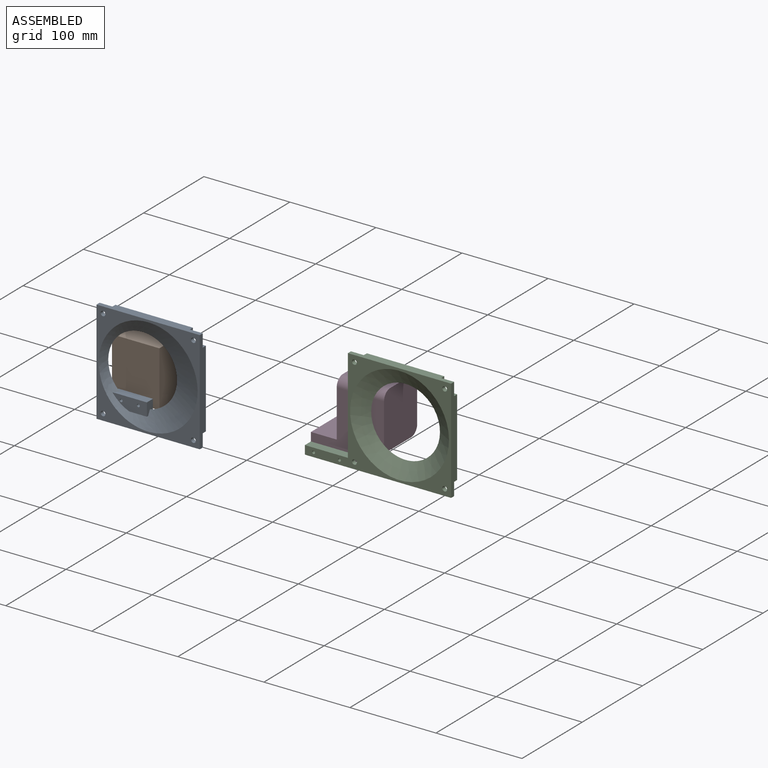
[diagram: assembled view]
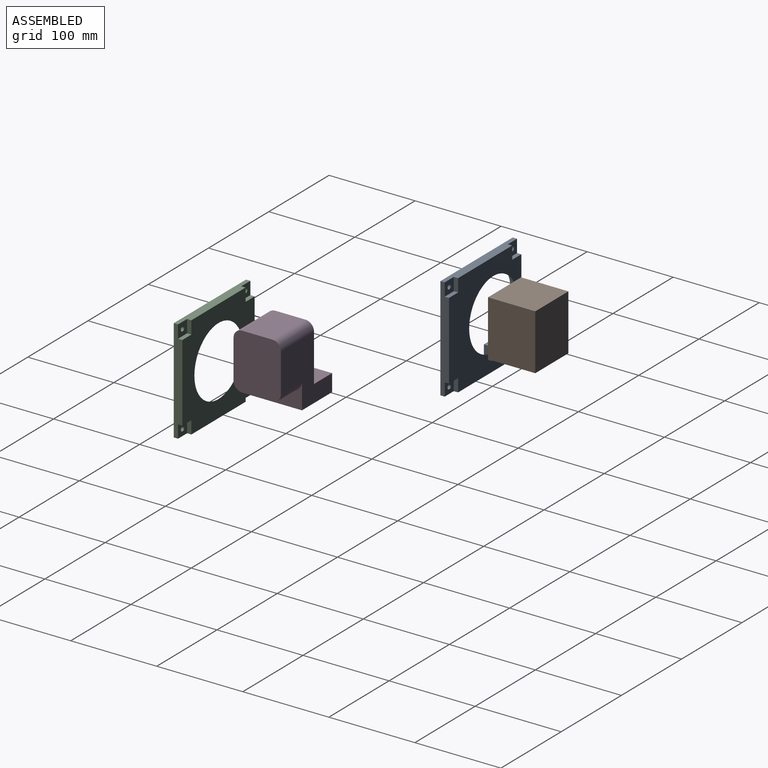
[diagram: assembled view, second angle]
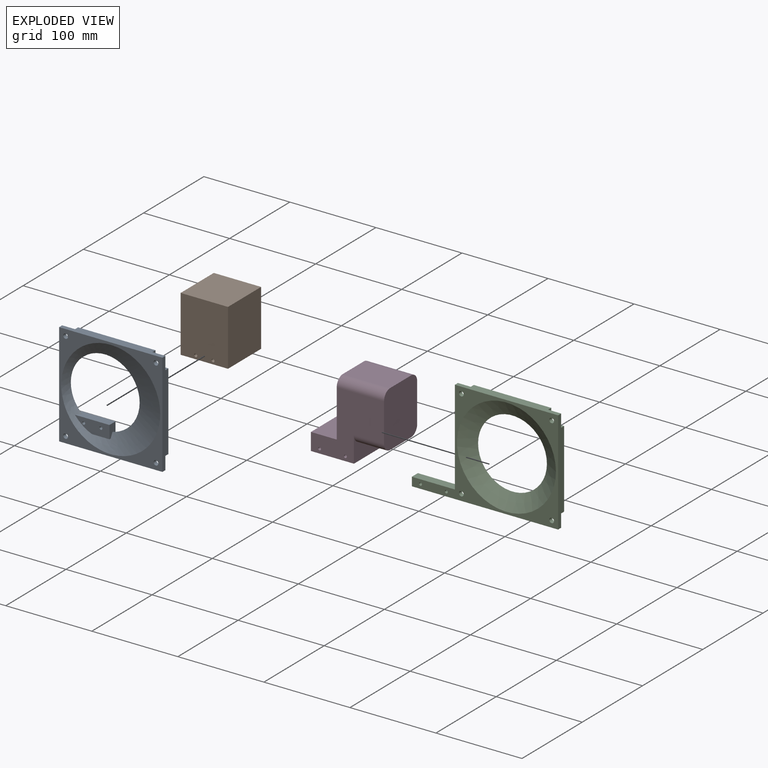
[diagram: exploded view]
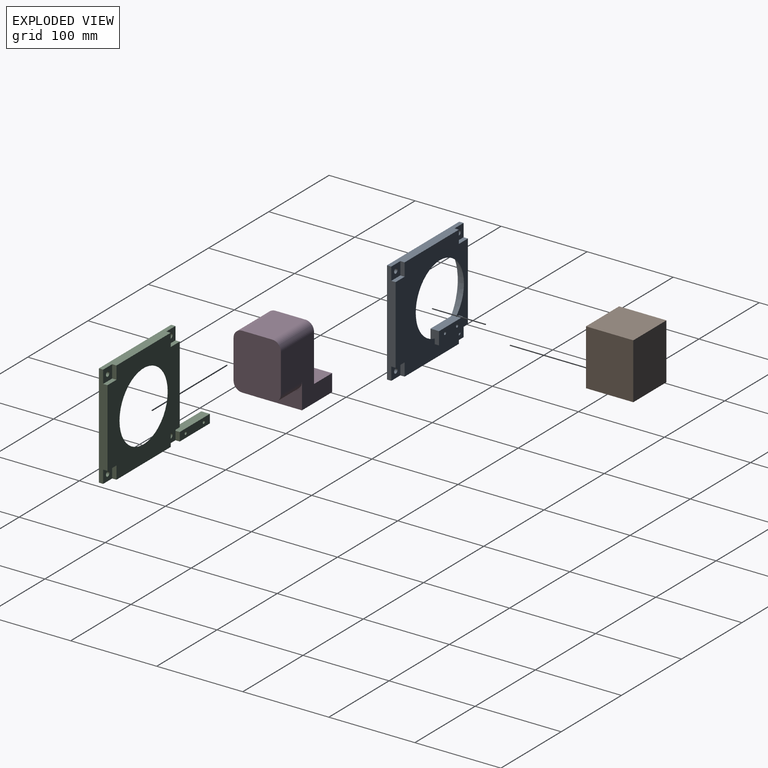
[diagram: exploded view, second angle]
ASSEMBLY  parts=4 mates=2
PART A: 33 faces, bbox 120.1x120.1x15.1 mm
  f0: plane 120x120mm, normal (0,0,-1), area 8136.6mm2, adj f1,f2,f3,f8,f9,f11,f12,f14
  f1: bspline ~115x115mm, area 6104.9mm2, adj f0,f10,f24,f25,f26,f28,f29
  f2: plane 120x10mm, normal (0,-1,0), area 1050mm2, adj f0,f3,f8,f10,f15,f16,f18,f19
  f3: plane 120x10mm, normal (-1,0,0), area 1050mm2, adj f0,f2,f9,f10,f17,f19,f21,f22
  f4: cylinder r=2.75mm len=5.5mm, axis (0,0,-1), area 86.4mm2, adj f10,f22
  f5: cylinder r=2.75mm len=5.5mm, axis (0,0,-1), area 86.4mm2, adj f10,f19
  f6: cylinder r=2.75mm len=5.5mm, axis (0,0,-1), area 86.4mm2, adj f10,f16
  f7: cylinder r=2.75mm len=5.5mm, axis (0,0,-1), area 86.4mm2, adj f10,f13
  f8: plane 120x10mm, normal (1,0,0), area 1050mm2, adj f0,f2,f9,f10,f11,f13,f14,f16
  f9: plane 120x10mm, normal (0,1,0), area 1050mm2, adj f0,f3,f8,f10,f12,f13,f20,f22
  f10: plane 120x120mm, normal (0,0,1), area 3918.8mm2, adj f1,f2,f3,f4,f5,f6,f7,f8
  f11: plane 15x5mm, normal (0,1,0), area 75mm2, adj f0,f8,f12,f13
  f12: plane 15x5mm, normal (1,0,0), area 75mm2, adj f0,f9,f11,f13
  f13: plane 15x15mm, normal (0,0,-1), area 201.2mm2, adj f7,f8,f9,f11,f12
  f14: plane 15x5mm, normal (0,-1,0), area 75mm2, adj f0,f8,f15,f16
  f15: plane 15x5mm, normal (1,0,0), area 75mm2, adj f0,f2,f14,f16
  f16: plane 15x15mm, normal (0,0,-1), area 201.2mm2, adj f2,f6,f8,f14,f15
  f17: plane 15x5mm, normal (0,-1,0), area 75mm2, adj f0,f3,f18,f19
  f18: plane 15x5mm, normal (-1,0,0), area 75mm2, adj f0,f2,f17,f19
  f19: plane 15x15mm, normal (0,0,-1), area 201.2mm2, adj f2,f3,f5,f17,f18
  f20: plane 15x5mm, normal (-1,0,0), area 75mm2, adj f0,f9,f21,f22
  f21: plane 15x5mm, normal (0,1,0), area 75mm2, adj f0,f3,f20,f22
  f22: plane 15x15mm, normal (0,0,-1), area 201.2mm2, adj f3,f4,f9,f20,f21
  f23: plane 15x5mm, normal (-1,0,0), area 75mm2, adj f0,f25,f27,f30
  f24: plane 0.18x0.16mm, normal (-1,0,0), area 0mm2, adj f1,f25,f29
  f25: plane 40x10mm, normal (0,1,0), area 388.4mm2, adj f0,f1,f23,f24,f26,f29,f30
  f26: plane 15x10mm, normal (1,0,0), area 141.3mm2, adj f0,f1,f25,f27,f28,f29,f30
  f27: plane 40x5mm, normal (0,-1,0), area 200mm2, adj f0,f23,f26,f30
  f28: plane 20.47x2.15mm, normal (0,-1,0), area 33.1mm2, adj f1,f26,f29
  f29: plane 40.1x15.1mm, normal (0,0,1), area 462.8mm2, adj f1,f24,f25,f26,f28,f31,f32
  f30: plane 40x15mm, normal (0,0,-1), area 581.8mm2, adj f23,f25,f26,f27,f31,f32
  f31: cylinder r=1.7mm len=10mm, axis (0,0,-1), area 106.8mm2, adj f29,f30
  f32: cylinder r=1.7mm len=10mm, axis (0,0,1), area 106.8mm2, adj f29,f30
PART B: 10 faces, bbox 55x55x65 mm
  f0: plane 65x55mm, normal (0,-1,0), area 3555.8mm2, adj f1,f3,f4,f5,f6,f8
  f1: plane 65x55mm, normal (1,0,0), area 3575mm2, adj f0,f2,f4,f5
  f2: plane 65x55mm, normal (0,1,0), area 3575mm2, adj f1,f3,f4,f5
  f3: plane 65x55mm, normal (-1,0,0), area 3575mm2, adj f0,f2,f4,f5
  f4: plane 55x55mm, normal (0,0,1), area 3025mm2, adj f0,f1,f2,f3
  f5: plane 55x55mm, normal (0,0,-1), area 3025mm2, adj f0,f1,f2,f3
  f6: cylinder r=1.75mm len=10mm, axis (0,-1,0), area 110mm2, adj f0,f7
  f7: plane 3.5x3.5mm, normal (0,-1,0), area 9.6mm2, adj f6
  f8: cylinder r=1.75mm len=10mm, axis (0,-1,0), area 110mm2, adj f0,f9
  f9: plane 3.5x3.5mm, normal (0,-1,0), area 9.6mm2, adj f8
PART C: 29 faces, bbox 170x120x10 mm
  f0: plane 110x10mm, normal (-1,0,0), area 1000mm2, adj f6,f8,f9,f17,f19,f21,f22,f24
  f1: plane 170x10mm, normal (0,-1,0), area 1550mm2, adj f6,f7,f9,f15,f16,f18,f19,f23
  f2: cylinder r=2.75mm len=5.5mm, axis (0,0,-1), area 86.4mm2, adj f9,f22
  f3: cylinder r=2.75mm len=5.5mm, axis (0,0,-1), area 86.4mm2, adj f9,f19
  f4: cylinder r=2.75mm len=5.5mm, axis (0,0,-1), area 86.4mm2, adj f9,f16
  f5: cylinder r=2.75mm len=5.5mm, axis (0,0,-1), area 86.4mm2, adj f9,f13
  f6: plane 120x120mm, normal (0,0,-1), area 8473.5mm2, adj f0,f1,f7,f8,f10,f11,f12,f14
  f7: plane 120x10mm, normal (1,0,0), area 1050mm2, adj f1,f6,f8,f9,f11,f13,f14,f16
  f8: plane 120x10mm, normal (0,1,0), area 1050mm2, adj f0,f6,f7,f9,f12,f13,f20,f22
  f9: plane 170x120mm, normal (0,0,1), area 4399.9mm2, adj f0,f1,f2,f3,f4,f5,f7,f8
  f10: cone r=57.5mm half-angle=60.3deg, axis (0,0,1), area 6173.8mm2, adj f6,f9
  f11: plane 15x5mm, normal (0,1,0), area 75mm2, adj f6,f7,f12,f13
  f12: plane 15x5mm, normal (1,0,0), area 75mm2, adj f6,f8,f11,f13
  f13: plane 15x15mm, normal (0,0,-1), area 201.2mm2, adj f5,f7,f8,f11,f12
  f14: plane 15x5mm, normal (0,-1,0), area 75mm2, adj f6,f7,f15,f16
  f15: plane 15x5mm, normal (1,0,0), area 75mm2, adj f1,f6,f14,f16
  f16: plane 15x15mm, normal (0,0,-1), area 201.2mm2, adj f1,f4,f7,f14,f15
  f17: plane 15x5mm, normal (0,-1,0), area 75mm2, adj f0,f6,f18,f19
  f18: plane 15x5mm, normal (-1,0,0), area 75mm2, adj f1,f6,f17,f19
  f19: plane 15x15mm, normal (0,0,-1), area 201.2mm2, adj f0,f1,f3,f17,f18,f23
  f20: plane 15x5mm, normal (-1,0,0), area 75mm2, adj f6,f8,f21,f22
  f21: plane 15x5mm, normal (0,1,0), area 75mm2, adj f0,f6,f20,f22
  f22: plane 15x15mm, normal (0,0,-1), area 201.2mm2, adj f0,f2,f8,f20,f21
  f23: plane 10x5mm, normal (1,0,0), area 50mm2, adj f1,f19,f24,f26
  f24: plane 50x10mm, normal (0,1,0), area 500mm2, adj f0,f9,f23,f25,f26
  f25: plane 10x10mm, normal (-1,0,0), area 100mm2, adj f1,f9,f24,f26
  f26: plane 50x10mm, normal (0,0,-1), area 481.8mm2, adj f1,f23,f24,f25,f27,f28
  f27: cylinder r=1.7mm len=10mm, axis (0,0,1), area 106.8mm2, adj f9,f26
  f28: cylinder r=1.7mm len=10mm, axis (0,0,1), area 106.8mm2, adj f9,f26
PART D: 18 faces, bbox 85x55x85 mm
  f0: plane 65x55mm, normal (-1,0,0), area 3532.1mm2, adj f1,f7,f8,f9,f14,f16
  f1: plane 55x30mm, normal (0,0,1), area 1650mm2, adj f0,f2,f8,f9
  f2: plane 55x20mm, normal (-1,0,0), area 1100mm2, adj f1,f3,f8,f9
  f3: plane 55x50mm, normal (0,0,-1), area 2750mm2, adj f2,f4,f8,f9
  f4: plane 55x30mm, normal (1,0,0), area 1142.9mm2, adj f3,f5,f8,f9,f15,f17
  f5: plane 35x35mm, normal (0,0,-1), area 1225mm2, adj f4,f6,f15,f17
  f6: plane 65x55mm, normal (1,0,0), area 3489.2mm2, adj f5,f7,f8,f9,f14,f15,f16,f17
  f7: plane 55x35mm, normal (0,0,1), area 1925mm2, adj f0,f6,f14,f16
  f8: plane 85x75mm, normal (0,-1,0), area 3656.8mm2, adj f0,f1,f2,f3,f4,f6,f11,f13
  f9: plane 85x75mm, normal (0,1,0), area 3675mm2, adj f0,f1,f2,f3,f4,f6,f14,f15
  f10: cone r=0mm half-angle=59deg, axis (0,-1,0), area 10.6mm2, adj f11
  f11: cylinder r=1.7mm len=20mm, axis (0,-1,0), area 213.6mm2, adj f8,f10
  f12: cone r=0mm half-angle=59deg, axis (0,-1,0), area 10.6mm2, adj f13
  f13: cylinder r=1.7mm len=20mm, axis (0,-1,0), area 213.6mm2, adj f8,f12
  f14: cylinder r=10mm len=55mm, axis (-1,0,0), area 863.9mm2, adj f0,f6,f7,f9
  f15: cylinder r=10mm len=35mm, axis (1,0,0), area 549.8mm2, adj f4,f5,f6,f9
  f16: cylinder r=10mm len=55mm, axis (1,0,0), area 863.9mm2, adj f0,f6,f7,f8
  f17: cylinder r=10mm len=35mm, axis (-1,0,0), area 549.8mm2, adj f4,f5,f6,f8
PLACE A rot(axis=(1,0,0),90deg) t=(-1.12,90.82,52.6)mm
PLACE B t=(-26.12,123.32,12.6)mm
PLACE C rot(axis=(1,0,0),90deg) t=(340.55,20.09,119.99)mm
PLACE D t=(288.05,75.09,112.49)mm
MATE fastened A.f31 <-> B.f8  axis (0,1,0) through (-36.12,95.82,16.6)mm
MATE fastened C.f27 <-> D.f10  axis (0,1,0) through (240.55,20.09,64.99)mm
